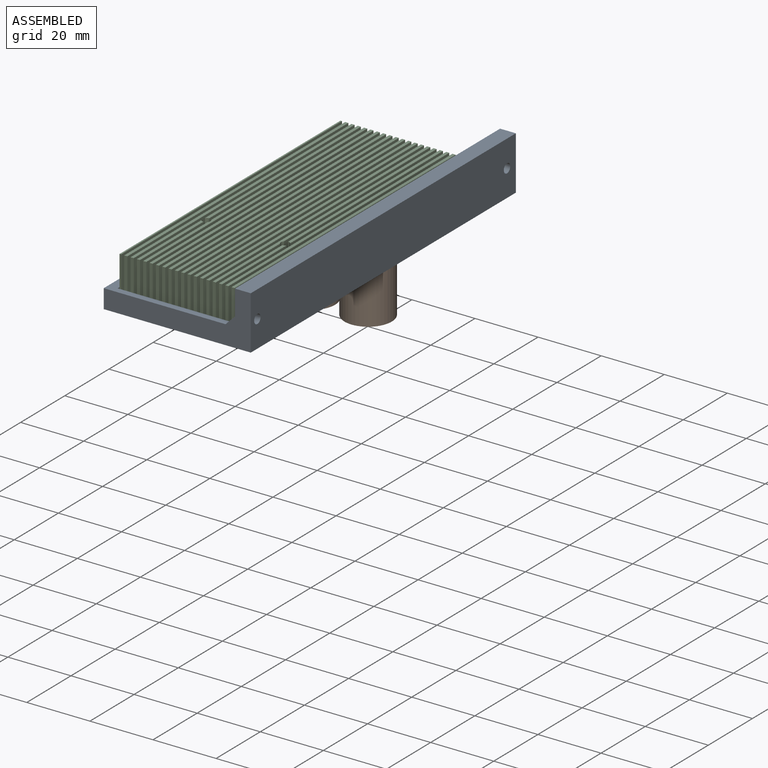
[diagram: assembled view]
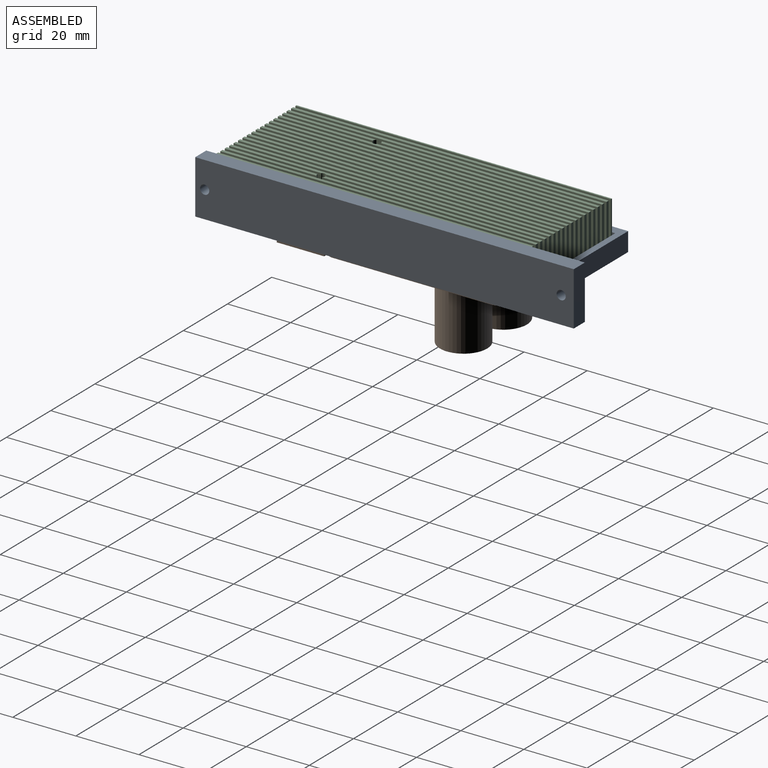
[diagram: assembled view, second angle]
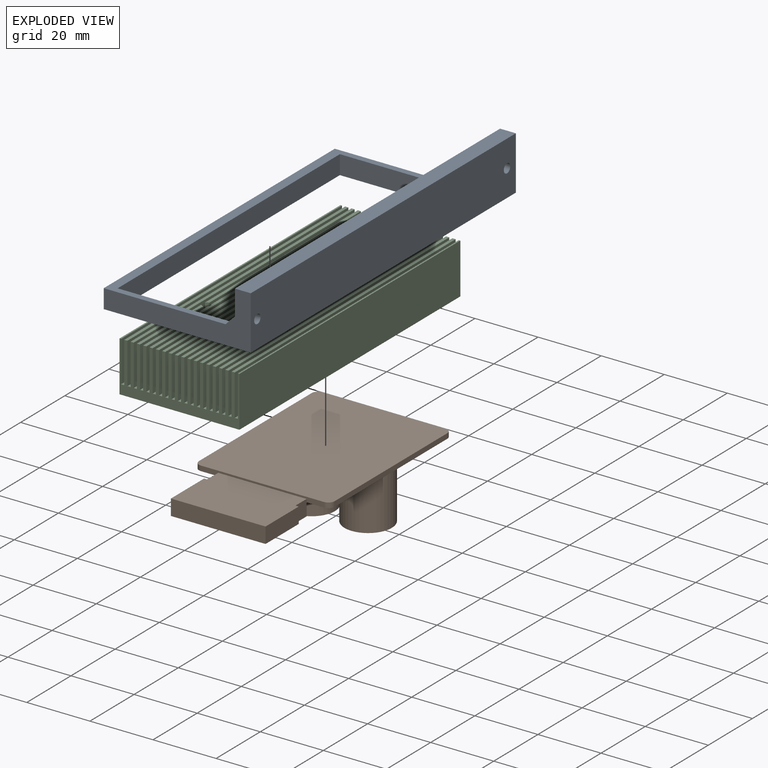
[diagram: exploded view]
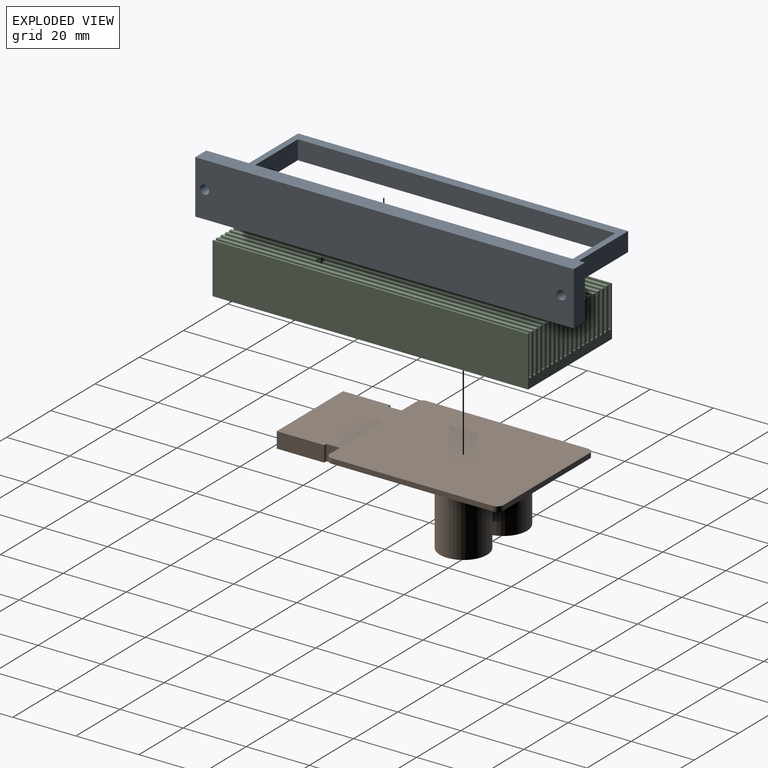
[diagram: exploded view, second angle]
ASSEMBLY  parts=3 mates=2
PART A: 16 faces, bbox 17x120x46.6 mm
  f0: plane 38.6x6mm, normal (0,-1,0), area 231.6mm2, adj f1,f7,f13,f15
  f1: plane 104.6x6mm, normal (0,0,1), area 627.6mm2, adj f0,f7,f8,f13
  f2: cylinder r=1.45mm len=6.55mm, axis (0,0,-1), area 46.9mm2, adj f3,f11,f12,f14
  f3: plane 38.6x7.45mm, normal (0,-1,0), area 234.9mm2, adj f2,f5,f7,f11,f13,f14
  f4: plane 38.6x6mm, normal (0,1,0), area 231.6mm2, adj f5,f7,f11,f13
  f5: plane 100.6x6mm, normal (0,0,-1), area 603.6mm2, adj f3,f4,f7,f13
  f6: plane 17x5mm, normal (0,-1,0), area 85mm2, adj f7,f10,f11,f12
  f7: plane 120x46.6mm, normal (1,0,0), area 1072.7mm2, adj f0,f1,f3,f4,f5,f6,f8,f11
  f8: plane 46.6x17mm, normal (0,1,0), area 339.1mm2, adj f1,f7,f10,f11,f12,f13,f14
  f9: cylinder r=1.45mm len=5mm, axis (0,0,-1), area 45.6mm2, adj f11,f12
  f10: plane 120x5mm, normal (-1,0,0), area 600mm2, adj f6,f8,f11,f12
  f11: plane 120x17mm, normal (0,0,1), area 1979.3mm2, adj f2,f3,f4,f6,f7,f8,f9,f10
  f12: plane 120x17mm, normal (0,0,-1), area 2026.8mm2, adj f2,f6,f7,f8,f9,f10
  f13: plane 107.6x41.6mm, normal (-1,0,0), area 466.7mm2, adj f0,f1,f3,f4,f5,f8,f11,f14
  f14: plane 3x3mm, normal (-0.71,0,0.71), area 7.7mm2, adj f2,f3,f8,f11,f13
  f15: plane 6x3mm, normal (0,-0.71,0.71), area 25.5mm2, adj f0,f7,f11,f13
PART B: 24 faces, bbox 75x43x21.6 mm
  f0: plane 51x1.6mm, normal (0,-1,0), area 81.6mm2, adj f4,f5,f6,f9
  f1: plane 39x1.6mm, normal (1,0,0), area 62.4mm2, adj f4,f5,f6,f7
  f2: plane 51x1.6mm, normal (0,1,0), area 81.6mm2, adj f4,f5,f7,f8
  f3: plane 39x1.6mm, normal (-1,0,0), area 34.4mm2, adj f4,f5,f8,f9,f14,f20,f23
  f4: plane 55x43mm, normal (0,0,1), area 2008.1mm2, adj f0,f1,f2,f3,f6,f7,f8,f9
  f5: plane 55x43mm, normal (0,0,-1), area 2361.6mm2, adj f0,f1,f2,f3,f6,f7,f8,f9
  f6: cylinder r=2mm len=2mm, axis (0,0,1), area 5mm2, adj f0,f1,f4,f5
  f7: cylinder r=2mm len=2mm, axis (0,0,-1), area 5mm2, adj f1,f2,f4,f5
  f8: cylinder r=2mm len=2mm, axis (0,0,1), area 5mm2, adj f2,f3,f4,f5
  f9: cylinder r=2mm len=2mm, axis (0,0,-1), area 5mm2, adj f0,f3,f4,f5
  f10: cylinder r=7.5mm len=20mm, axis (0,0,-1), area 942.5mm2, adj f4,f11
  f11: plane 15x15mm, normal (0,0,1), area 176.7mm2, adj f10
  f12: cylinder r=7.5mm len=20mm, axis (0,0,-1), area 942.5mm2, adj f4,f13
  f13: plane 15x15mm, normal (0,0,1), area 176.7mm2, adj f12
  f14: plane 5x5mm, normal (0,1,0), area 25mm2, adj f3,f15,f21,f22,f23
  f15: plane 5x1mm, normal (1,0,0), area 5mm2, adj f14,f16,f22,f23
  f16: plane 15x5mm, normal (0,1,0), area 75mm2, adj f15,f17,f22,f23
  f17: plane 30x5mm, normal (-1,0,0), area 150mm2, adj f16,f18,f22,f23
  f18: plane 15x5mm, normal (0,-1,0), area 75mm2, adj f17,f19,f22,f23
  f19: plane 5x1mm, normal (1,0,0), area 5mm2, adj f18,f20,f22,f23
  f20: plane 5x5mm, normal (0,-1,0), area 25mm2, adj f3,f19,f21,f22,f23
  f21: plane 28x4mm, normal (1,0,0), area 112mm2, adj f4,f14,f20,f22
  f22: plane 30x20mm, normal (0,0,1), area 590mm2, adj f14,f15,f16,f17,f18,f19,f20,f21
  f23: plane 30x20mm, normal (0,0,-1), area 590mm2, adj f3,f14,f15,f16,f17,f18,f19,f20
PART C: 94 faces, bbox 38x100x16 mm
  f0: plane 69.17x13mm, normal (-1,0,0), area 899.2mm2, adj f1,f20,f85,f92
  f1: plane 69.17x1mm, normal (0,0,1), area 68.8mm2, adj f0,f2,f85,f92
  f2: plane 68.7x13mm, normal (1,0,0), area 893.1mm2, adj f1,f3,f85,f92
  f3: plane 69.17x1mm, normal (0,0,1), area 68.8mm2, adj f2,f4,f85,f92
  f4: plane 69.17x13mm, normal (-1,0,0), area 899.2mm2, adj f3,f26,f85,f92
  f5: plane 69.17x13mm, normal (1,0,0), area 899.2mm2, adj f6,f66,f85,f93
  f6: plane 69.17x1mm, normal (0,0,1), area 68.8mm2, adj f5,f7,f85,f93
  f7: plane 68.7x13mm, normal (-1,0,0), area 893.1mm2, adj f6,f8,f85,f93
  f8: plane 69.17x1mm, normal (0,0,1), area 68.8mm2, adj f7,f9,f85,f93
  f9: plane 69.17x13mm, normal (1,0,0), area 899.2mm2, adj f8,f72,f85,f93
  f10: plane 100x0.5mm, normal (0,0,1), area 50mm2, adj f11,f83,f85,f86
  f11: plane 100x13mm, normal (1,0,0), area 1300mm2, adj f10,f12,f83,f85
  f12: plane 100x1mm, normal (0,0,1), area 100mm2, adj f11,f13,f83,f85
  f13: plane 100x13mm, normal (-1,0,0), area 1300mm2, adj f12,f14,f83,f85
  f14: plane 100x1mm, normal (0,0,1), area 100mm2, adj f13,f15,f83,f85
  f15: plane 100x13mm, normal (1,0,0), area 1300mm2, adj f14,f16,f83,f85
  f16: plane 100x1mm, normal (0,0,1), area 100mm2, adj f15,f17,f83,f85
  f17: plane 100x13mm, normal (-1,0,0), area 1300mm2, adj f16,f18,f83,f85
  f18: plane 100x1mm, normal (0,0,1), area 100mm2, adj f17,f19,f83,f85
  f19: plane 100x13mm, normal (1,0,0), area 1300mm2, adj f18,f20,f83,f85
  f20: plane 100x1mm, normal (0,0,1), area 99.7mm2, adj f0,f19,f21,f83,f85,f92
  f21: plane 29.17x13mm, normal (-1,0,0), area 379.2mm2, adj f20,f22,f83,f92
  f22: plane 29.17x1mm, normal (0,0,1), area 28.8mm2, adj f21,f23,f83,f92
  f23: plane 28.7x13mm, normal (1,0,0), area 373.1mm2, adj f22,f24,f83,f92
  f24: plane 29.17x1mm, normal (0,0,1), area 28.8mm2, adj f23,f25,f83,f92
  f25: plane 29.17x13mm, normal (-1,0,0), area 379.2mm2, adj f24,f26,f83,f92
  f26: plane 100x1mm, normal (0,0,1), area 99.7mm2, adj f4,f25,f27,f83,f85,f92
  f27: plane 100x13mm, normal (1,0,0), area 1300mm2, adj f26,f28,f83,f85
  f28: plane 100x1mm, normal (0,0,1), area 100mm2, adj f27,f29,f83,f85
  f29: plane 100x13mm, normal (-1,0,0), area 1300mm2, adj f28,f30,f83,f85
  f30: plane 100x1mm, normal (0,0,1), area 100mm2, adj f29,f31,f83,f85
  f31: plane 100x13mm, normal (1,0,0), area 1300mm2, adj f30,f32,f83,f85
  f32: plane 100x1mm, normal (0,0,1), area 100mm2, adj f31,f33,f83,f85
  f33: plane 100x13mm, normal (-1,0,0), area 1300mm2, adj f32,f34,f83,f85
  f34: plane 100x1mm, normal (0,0,1), area 100mm2, adj f33,f35,f83,f85
  f35: plane 100x13mm, normal (1,0,0), area 1300mm2, adj f34,f36,f83,f85
  f36: plane 100x1mm, normal (0,0,1), area 100mm2, adj f35,f37,f83,f85
  f37: plane 100x13mm, normal (-1,0,0), area 1300mm2, adj f36,f38,f83,f85
  f38: plane 100x1mm, normal (0,0,1), area 100mm2, adj f37,f39,f83,f85
  f39: plane 100x13mm, normal (1,0,0), area 1300mm2, adj f38,f40,f83,f85
  f40: plane 100x1mm, normal (0,0,1), area 100mm2, adj f39,f41,f83,f85
  f41: plane 100x13mm, normal (-1,0,0), area 1300mm2, adj f40,f42,f83,f85
  f42: plane 100x1mm, normal (0,0,1), area 100mm2, adj f41,f43,f83,f85
  f43: plane 100x13mm, normal (1,0,0), area 1300mm2, adj f42,f44,f83,f85
  f44: plane 100x1mm, normal (0,0,1), area 100mm2, adj f43,f45,f83,f85
  f45: plane 100x13mm, normal (-1,0,0), area 1300mm2, adj f44,f83,f85,f87
  f46: plane 100x1mm, normal (0,0,1), area 100mm2, adj f47,f83,f85,f91
  f47: plane 100x13mm, normal (1,0,0), area 1300mm2, adj f46,f48,f83,f85
  f48: plane 100x1mm, normal (0,0,1), area 100mm2, adj f47,f49,f83,f85
  f49: plane 100x13mm, normal (-1,0,0), area 1300mm2, adj f48,f50,f83,f85
  f50: plane 100x1mm, normal (0,0,1), area 100mm2, adj f49,f51,f83,f85
  f51: plane 100x13mm, normal (1,0,0), area 1300mm2, adj f50,f52,f83,f85
  f52: plane 100x1mm, normal (0,0,1), area 100mm2, adj f51,f53,f83,f85
  f53: plane 100x13mm, normal (-1,0,0), area 1300mm2, adj f52,f54,f83,f85
  f54: plane 100x1mm, normal (0,0,1), area 100mm2, adj f53,f55,f83,f85
  f55: plane 100x13mm, normal (1,0,0), area 1300mm2, adj f54,f56,f83,f85
  f56: plane 100x1mm, normal (0,0,1), area 100mm2, adj f55,f57,f83,f85
  f57: plane 100x13mm, normal (-1,0,0), area 1300mm2, adj f56,f58,f83,f85
  f58: plane 100x1mm, normal (0,0,1), area 100mm2, adj f57,f59,f83,f85
  f59: plane 100x13mm, normal (1,0,0), area 1300mm2, adj f58,f60,f83,f85
  f60: plane 100x1mm, normal (0,0,1), area 100mm2, adj f59,f61,f83,f85
  f61: plane 100x13mm, normal (-1,0,0), area 1300mm2, adj f60,f62,f83,f85
  f62: plane 100x1mm, normal (0,0,1), area 100mm2, adj f61,f63,f83,f85
  f63: plane 100x13mm, normal (1,0,0), area 1300mm2, adj f62,f64,f83,f85
  f64: plane 100x1mm, normal (0,0,1), area 100mm2, adj f63,f65,f83,f85
  f65: plane 100x13mm, normal (-1,0,0), area 1300mm2, adj f64,f66,f83,f85
  f66: plane 100x1mm, normal (0,0,1), area 99.7mm2, adj f5,f65,f67,f83,f85,f93
  f67: plane 29.17x13mm, normal (1,0,0), area 379.2mm2, adj f66,f68,f83,f93
  f68: plane 29.17x1mm, normal (0,0,1), area 28.8mm2, adj f67,f69,f83,f93
  f69: plane 28.7x13mm, normal (-1,0,0), area 373.1mm2, adj f68,f70,f83,f93
  f70: plane 29.17x1mm, normal (0,0,1), area 28.8mm2, adj f69,f71,f83,f93
  f71: plane 29.17x13mm, normal (1,0,0), area 379.2mm2, adj f70,f72,f83,f93
  f72: plane 100x1mm, normal (0,0,1), area 99.7mm2, adj f9,f71,f73,f83,f85,f93
  f73: plane 100x13mm, normal (-1,0,0), area 1300mm2, adj f72,f74,f83,f85
  f74: plane 100x1mm, normal (0,0,1), area 100mm2, adj f73,f75,f83,f85
  f75: plane 100x13mm, normal (1,0,0), area 1300mm2, adj f74,f76,f83,f85
  f76: plane 100x1mm, normal (0,0,1), area 100mm2, adj f75,f77,f83,f85
  f77: plane 100x13mm, normal (-1,0,0), area 1300mm2, adj f76,f78,f83,f85
  f78: plane 100x1mm, normal (0,0,1), area 100mm2, adj f77,f79,f83,f85
  f79: plane 100x13mm, normal (1,0,0), area 1300mm2, adj f78,f80,f83,f85
  f80: plane 100x1mm, normal (0,0,1), area 100mm2, adj f79,f81,f83,f85
  f81: plane 100x13mm, normal (-1,0,0), area 1300mm2, adj f80,f82,f83,f85
  f82: plane 100x0.5mm, normal (0,0,1), area 50mm2, adj f81,f83,f84,f85
  f83: plane 38x16mm, normal (0,-1,0), area 361mm2, adj f10,f11,f12,f13,f14,f15,f16,f17
  f84: plane 100x16mm, normal (1,0,0), area 1600mm2, adj f82,f83,f85,f88
  f85: plane 38x16mm, normal (0,1,0), area 361mm2, adj f0,f1,f2,f3,f4,f5,f6,f7
  f86: plane 100x16mm, normal (-1,0,0), area 1600mm2, adj f10,f83,f85,f88
  f87: plane 100x1mm, normal (0,0,1), area 100mm2, adj f45,f83,f85,f89
  f88: plane 100x38mm, normal (0,0,-1), area 3789.4mm2, adj f83,f84,f85,f86,f92,f93
  f89: plane 100x13mm, normal (1,0,0), area 1300mm2, adj f83,f85,f87,f90
  f90: plane 100x1mm, normal (0,0,1), area 100mm2, adj f83,f85,f89,f91
  f91: plane 100x13mm, normal (-1,0,0), area 1300mm2, adj f46,f83,f85,f90
  f92: cylinder r=1.3mm len=16mm, axis (0,0,-1), area 77.6mm2, adj f0,f1,f2,f3,f4,f20,f21,f22
  f93: cylinder r=1.3mm len=16mm, axis (0,0,-1), area 77.6mm2, adj f5,f6,f7,f8,f9,f66,f67,f68
PLACE A rot(axis=(-0.71,0,0.71),180deg) t=(46.12,64.09,-15.22)mm
PLACE B rot(axis=(0.71,0.71,0),180deg) t=(22.12,71.15,-23.72)mm
PLACE C t=(22.12,56.09,-23.72)mm
MATE fastened C.f88 <-> B.f5  axis (0,0,-1) through (22.12,56.15,-23.72)mm
MATE fastened A.f11 <-> C.f84  axis (-1,0,0) through (41.12,6.09,-23.72)mm
